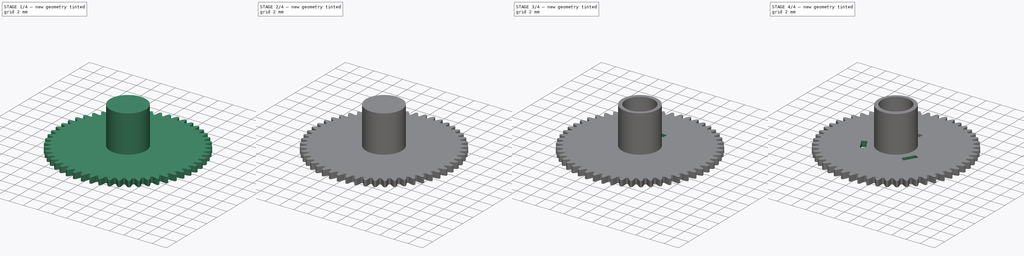
[diagram: build sequence overview — one tinted view per stage of 4, left to right]
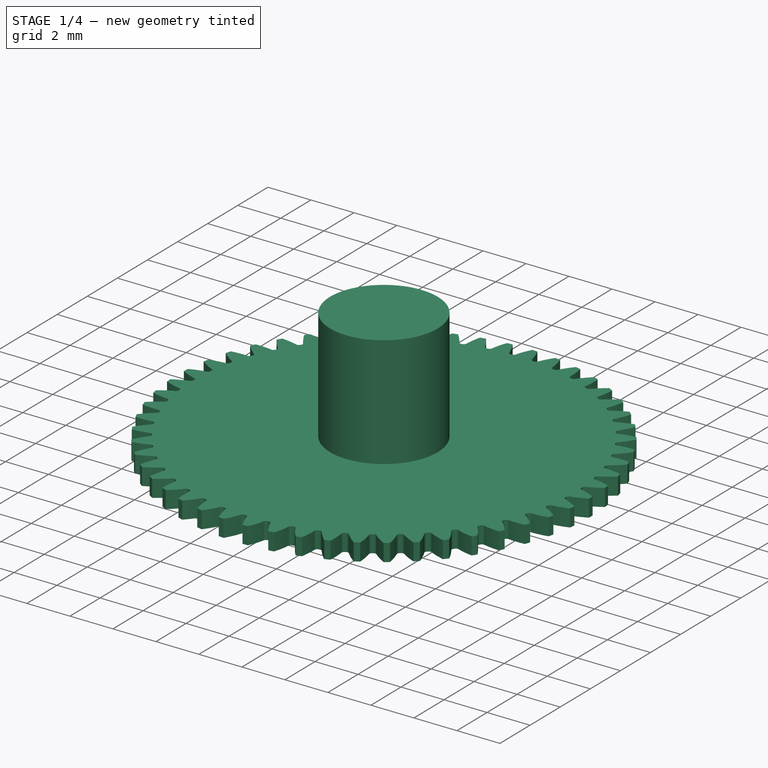
[diagram: stage 1 of 4 — iso view after this stage's code; geometry added in this stage tinted green]
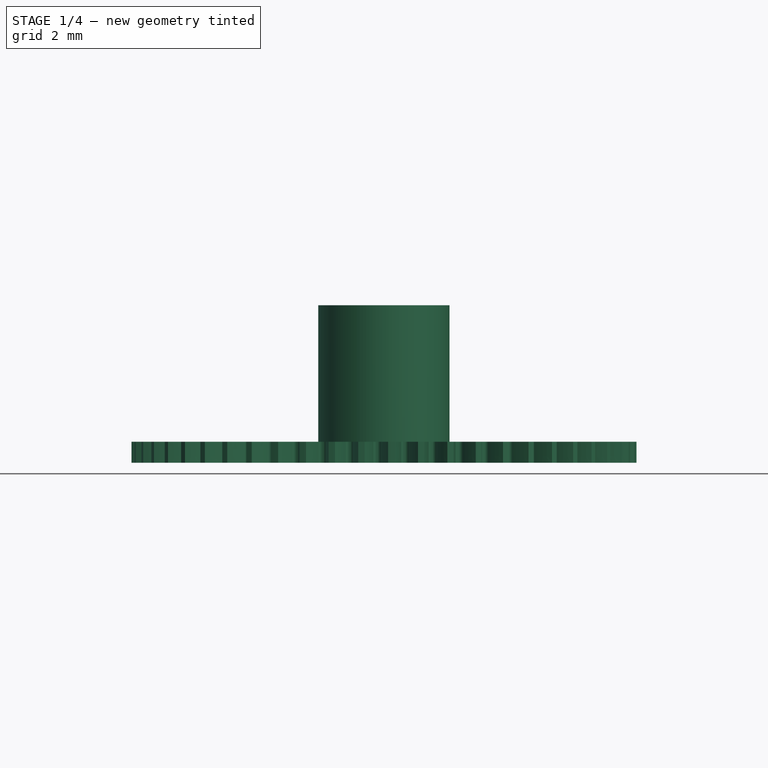
[diagram: stage 1 of 4 — front view after this stage's code; geometry added in this stage tinted green]
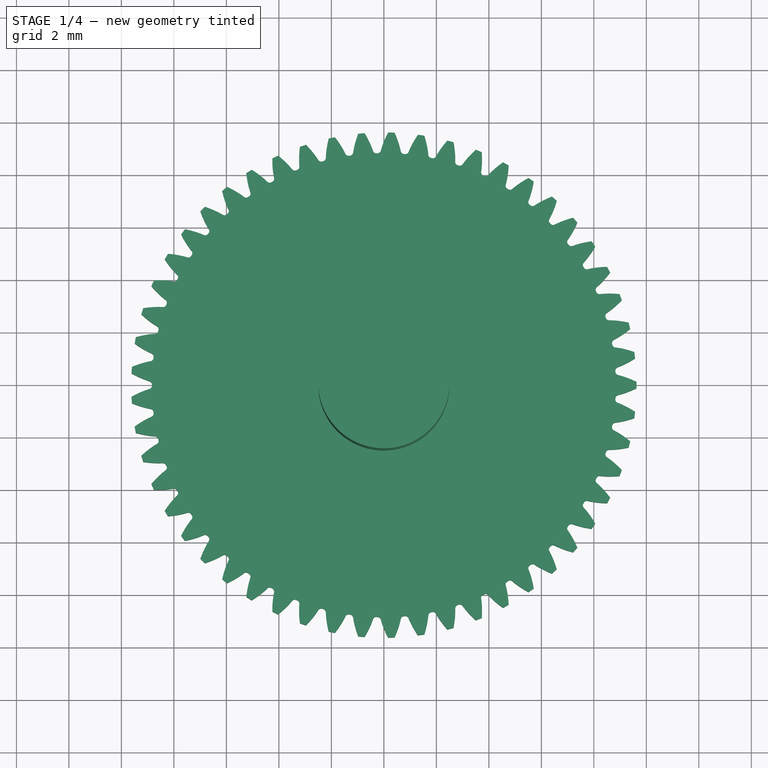
[diagram: stage 1 of 4 — top view after this stage's code; geometry added in this stage tinted green]
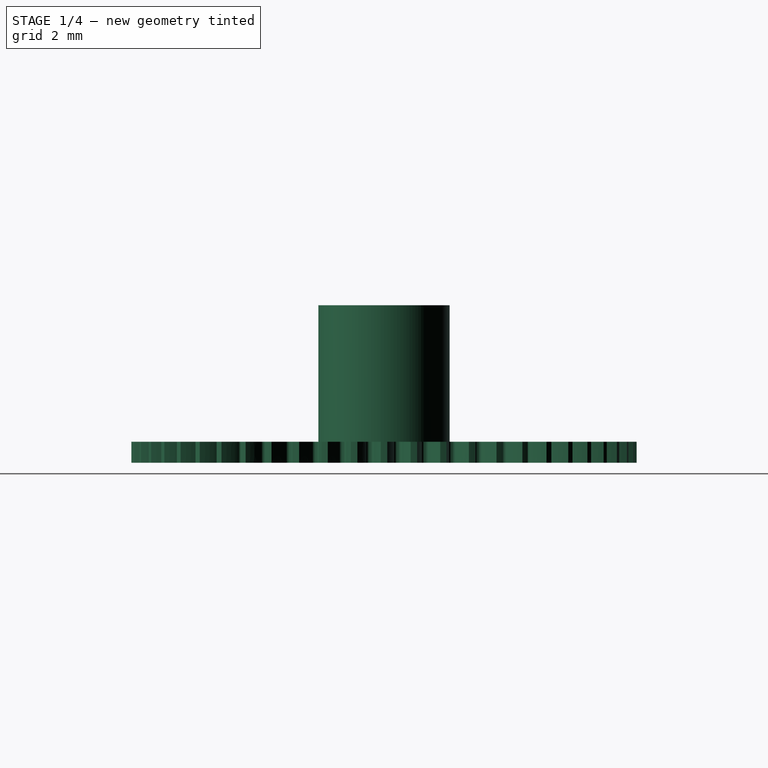
[diagram: stage 1 of 4 — right view after this stage's code; geometry added in this stage tinted green]
FCSTD DOCUMENT  (FreeCAD 0.18R4 (GitTag))
Label: my_gear
License: All rights reserved
LicenseURL: http://en.wikipedia.org/wiki/All_rights_reserved
objects: Part::Cylinder×2, PartDesign::Body×2, Part::Part2DObjectPython×1, Part::Extrusion×1, Part::Fuse×1, Part::Cut×1, PartDesign::FeatureBase×1, Sketcher::SketchObject×1, PartDesign::Pocket×1, PartDesign::PolarPattern×1, PartDesign::Fillet×1
note: 14 computed .brp shape members not serialized (recipe doc carries the construction recipe); baked Part::Feature solids carry a one-line shape summary decoded from their .brp

FEATURE [Part::Part2DObjectPython] InvoluteGear  # Draft 2D object (typed FeaturePython)
  ExternalGear = true
  HighPrecision = true
  Modules = 0.35
  NumberOfTeeth = 53
  PressureAngle = 22
FEATURE [Part::Cylinder] Cylinder  label="Цилиндр"
  Angle = 360
  AttacherType = Attacher::AttachEngine3D
  Height = 6
  Radius = 2.5
FEATURE [Part::Extrusion] Extrude
  Base = -> InvoluteGear
  Dir = (0,0,1)
  DirMode = 2
  FaceMakerClass = Part::FaceMakerBullseye
  LengthFwd = 0.8
  LengthRev = 0
  Solid = true
  Symmetric = false
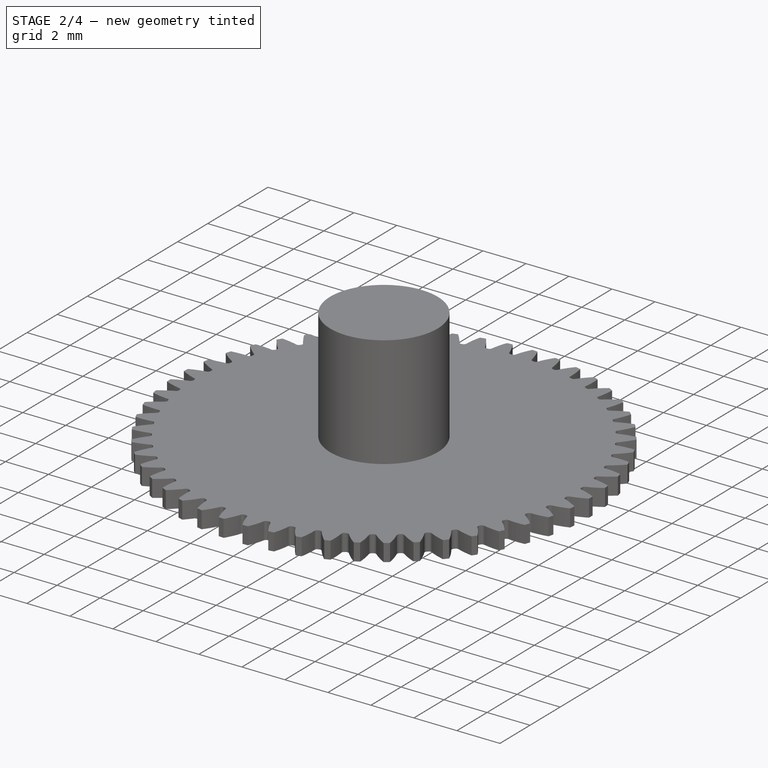
[diagram: stage 2 of 4 — iso view after this stage's code; geometry added in this stage tinted green]
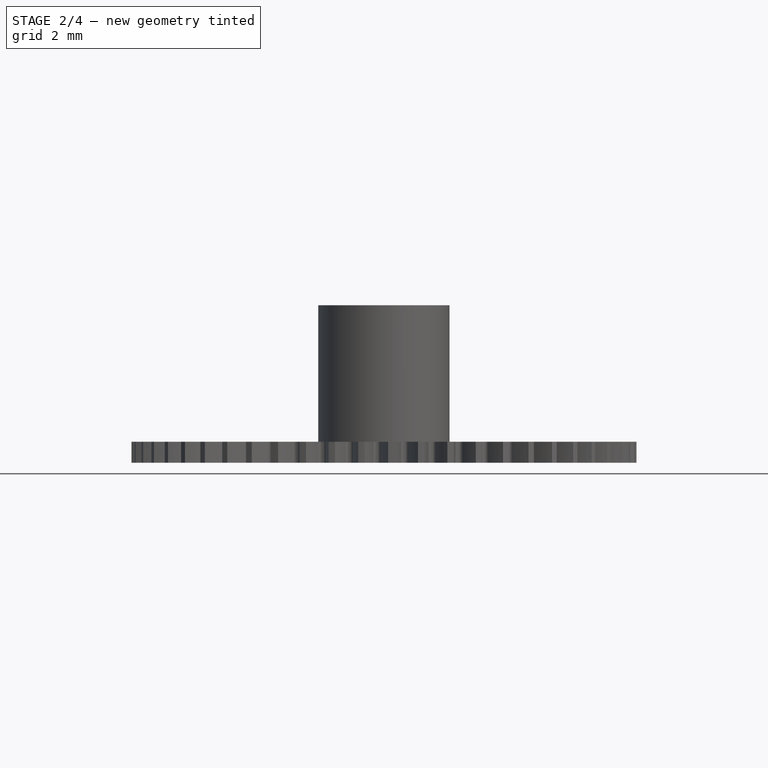
[diagram: stage 2 of 4 — front view after this stage's code; geometry added in this stage tinted green]
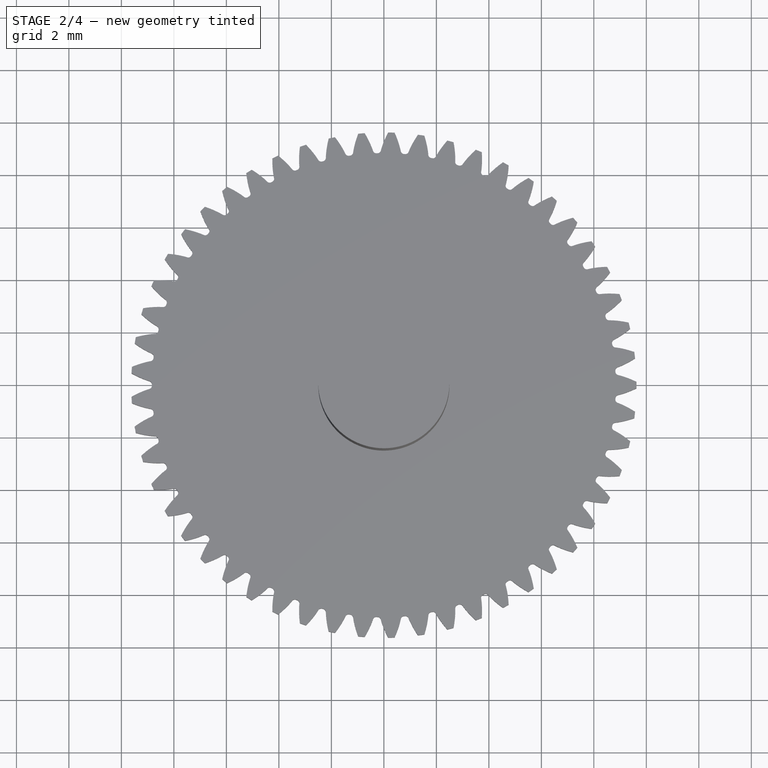
[diagram: stage 2 of 4 — top view after this stage's code; geometry added in this stage tinted green]
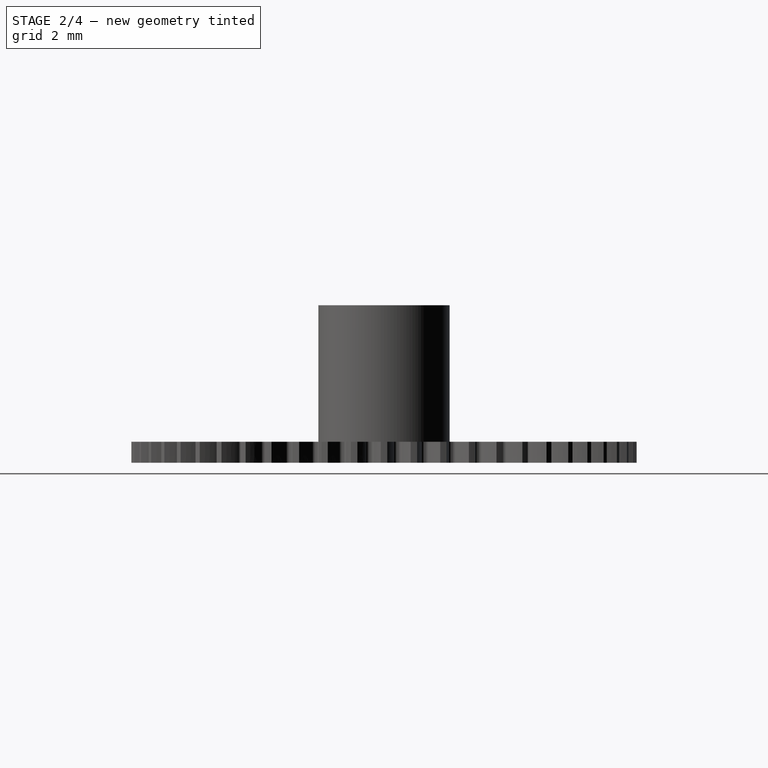
[diagram: stage 2 of 4 — right view after this stage's code; geometry added in this stage tinted green]
FEATURE [Part::Cylinder] Cylinder001  label="Цилиндр001"
  Angle = 360
  AttacherType = Attacher::AttachEngine3D
  Height = 6
  Radius = 2
FEATURE [Part::Fuse] Fusion
  Base = -> Extrude
  Tool = -> Cylinder
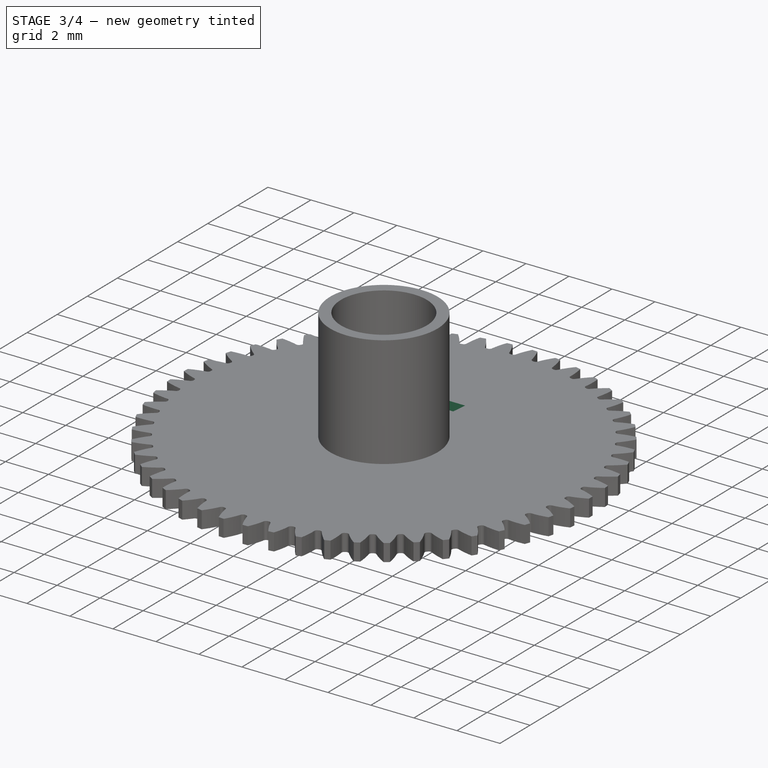
[diagram: stage 3 of 4 — iso view after this stage's code; geometry added in this stage tinted green]
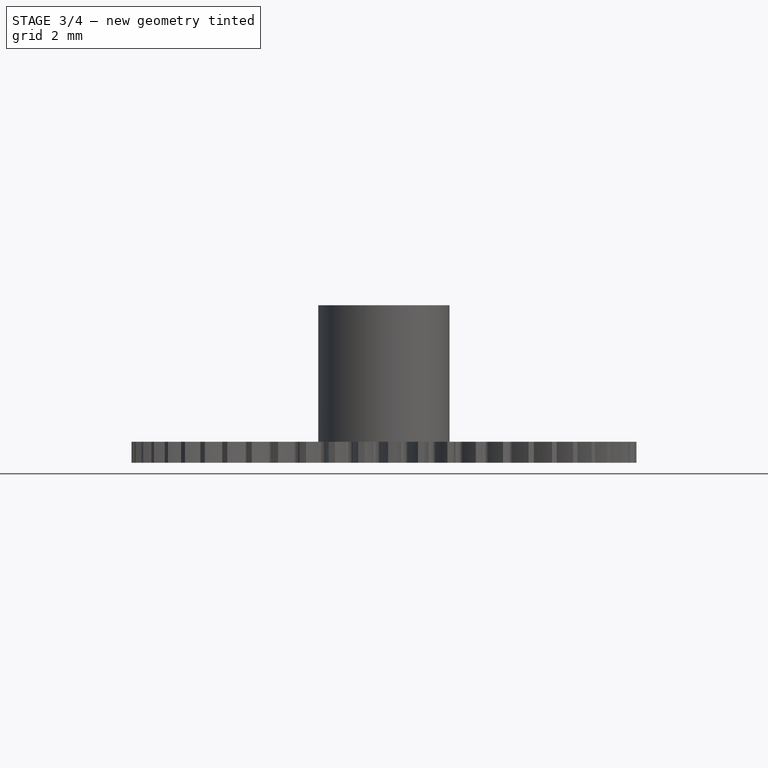
[diagram: stage 3 of 4 — front view after this stage's code; geometry added in this stage tinted green]
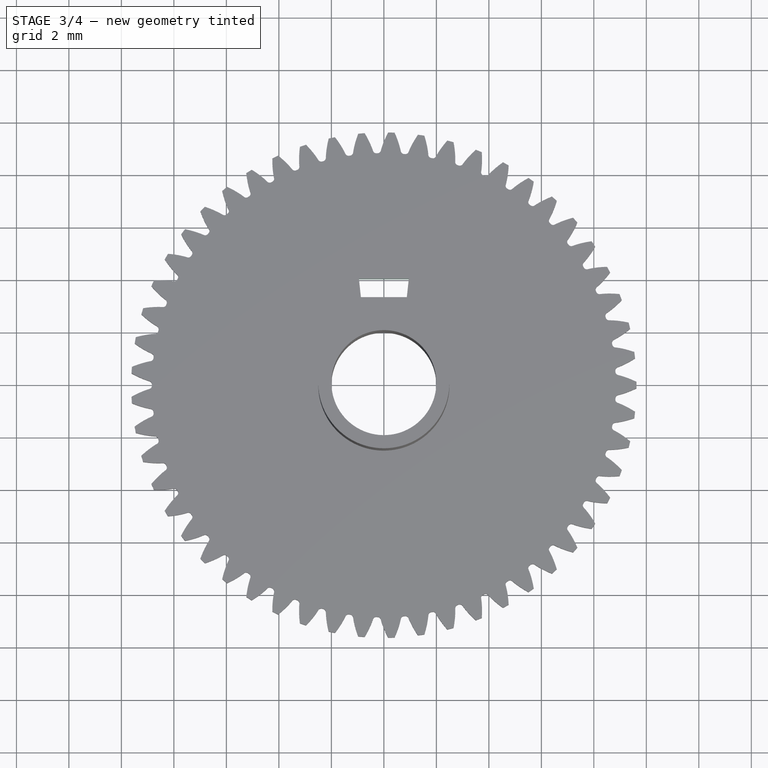
[diagram: stage 3 of 4 — top view after this stage's code; geometry added in this stage tinted green]
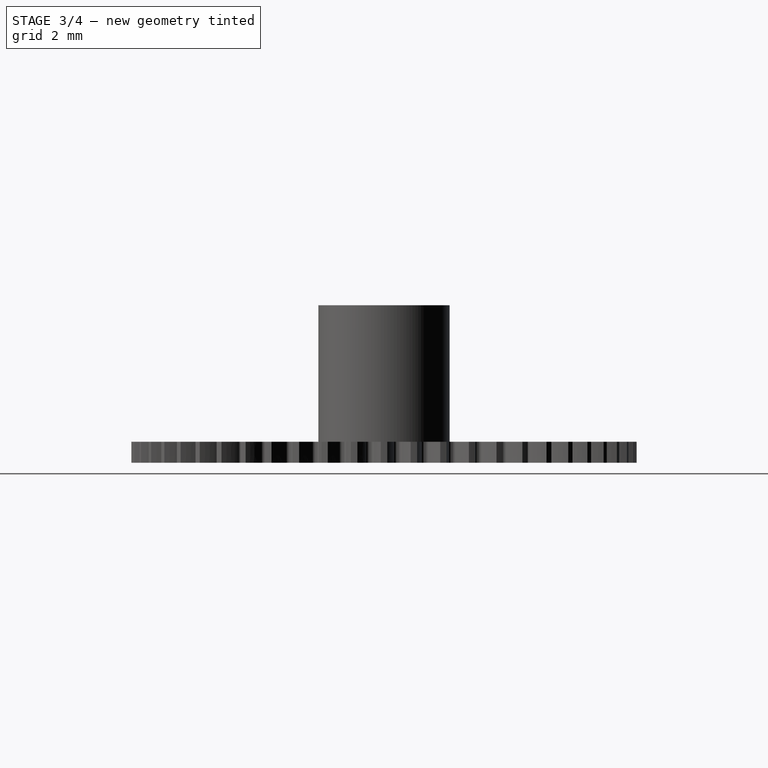
[diagram: stage 3 of 4 — right view after this stage's code; geometry added in this stage tinted green]
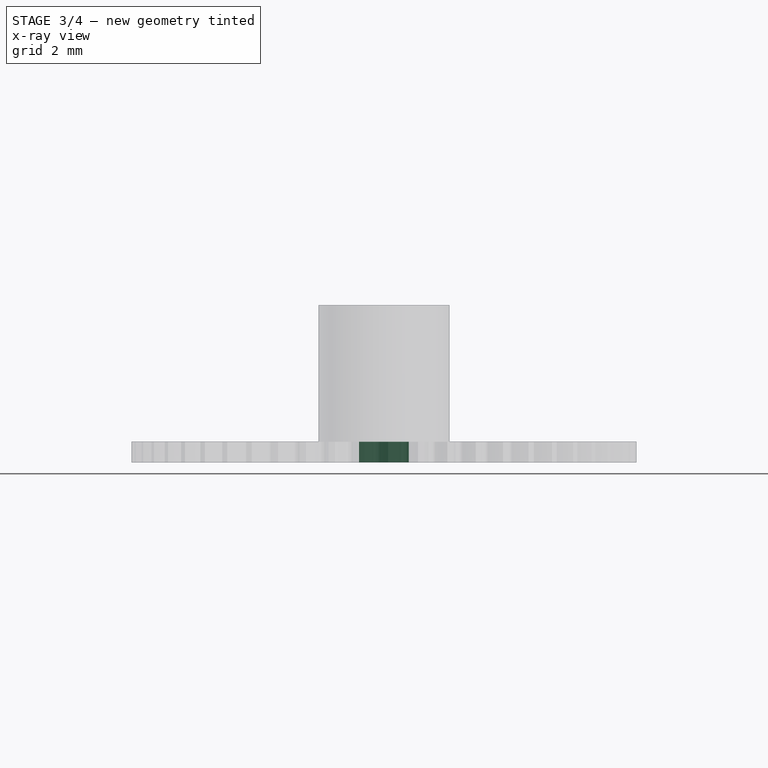
[diagram: stage 3 of 4 — x-ray composite at the front view; earlier geometry ghosted, this stage's added geometry solid]
FEATURE [Part::Cut] Cut
  Base = -> Fusion
  Placement = pos=(0,0,0) rot=(1,0,0;3.14159rad)
  Tool = -> Cylinder001
FEATURE [PartDesign::Body] Body
  Origin = -> Origin
FEATURE [PartDesign::FeatureBase] BaseFeature
  BaseFeature = -> Cut
FEATURE [Sketcher::SketchObject] Sketch
  MapMode = 5
  Placement = pos=(0,0,0.8) rot=(0,0,1;0rad)
  Support = -> [BaseFeature]
  sketch-geometry (4):
    g0: LineSegment StartX=-0.95 StartY=4.04543 StartZ=0 EndX=0.95 EndY=4.04543 EndZ=0
    g1: LineSegment StartX=0.95 StartY=4.04543 StartZ=0 EndX=0.875 EndY=3.34946 EndZ=0
    g2: LineSegment StartX=0.875 StartY=3.34946 StartZ=0 EndX=-0.875 EndY=3.34946 EndZ=0
    g3: LineSegment StartX=-0.875 StartY=3.34946 StartZ=0 EndX=-0.95 EndY=4.04543 EndZ=0
  constraints (9):
    c: Coincident(g0,g1)
    c: Coincident(g1,g2)
    c: Coincident(g2,g3)
    c: Coincident(g3,g0)
    c: DistanceX(g0,g0) = 1.9
    c: Symmetric(g0,g0,g-2)
    c: Symmetric(g1,g2,g-2)
    c: DistanceX(g2,g2) = 1.75
    c: Distance(g1) = 0.7
FEATURE [PartDesign::Pocket] Pocket
  BaseFeature = -> BaseFeature
  Length = 5
  Length2 = 100
  Profile = -> Sketch
  Type = 0
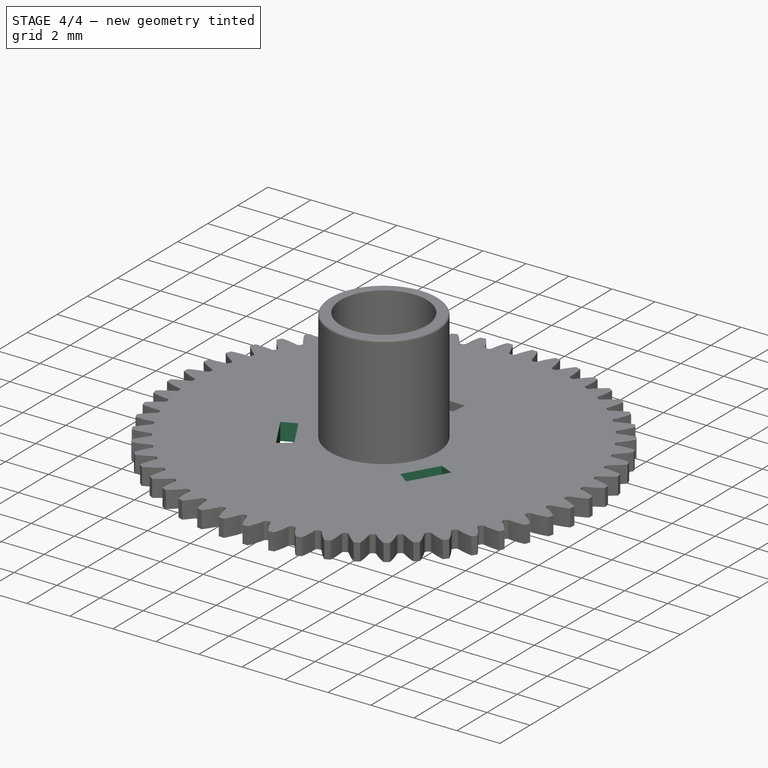
[diagram: stage 4 of 4 — iso view after this stage's code; geometry added in this stage tinted green]
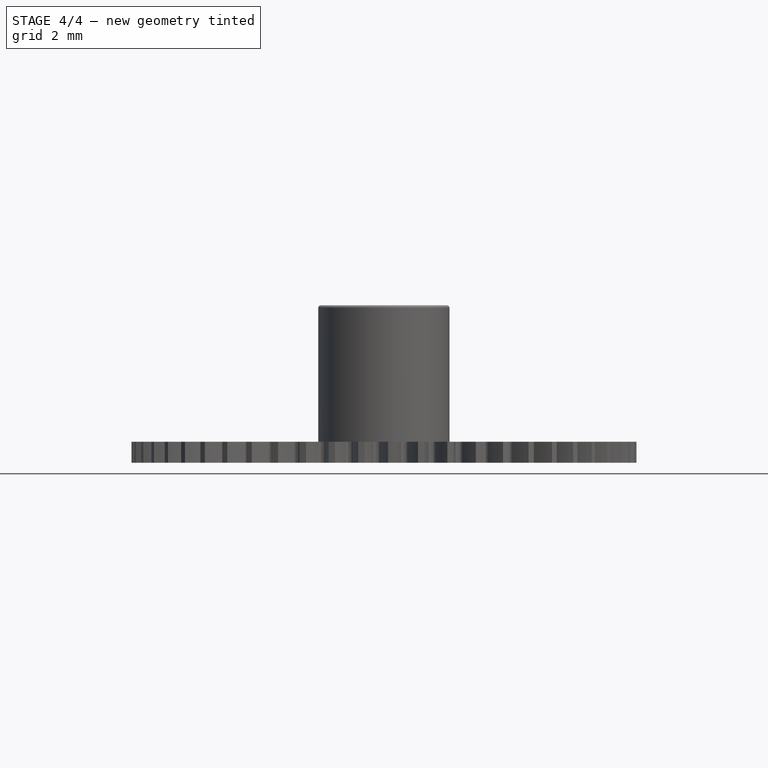
[diagram: stage 4 of 4 — front view after this stage's code; geometry added in this stage tinted green]
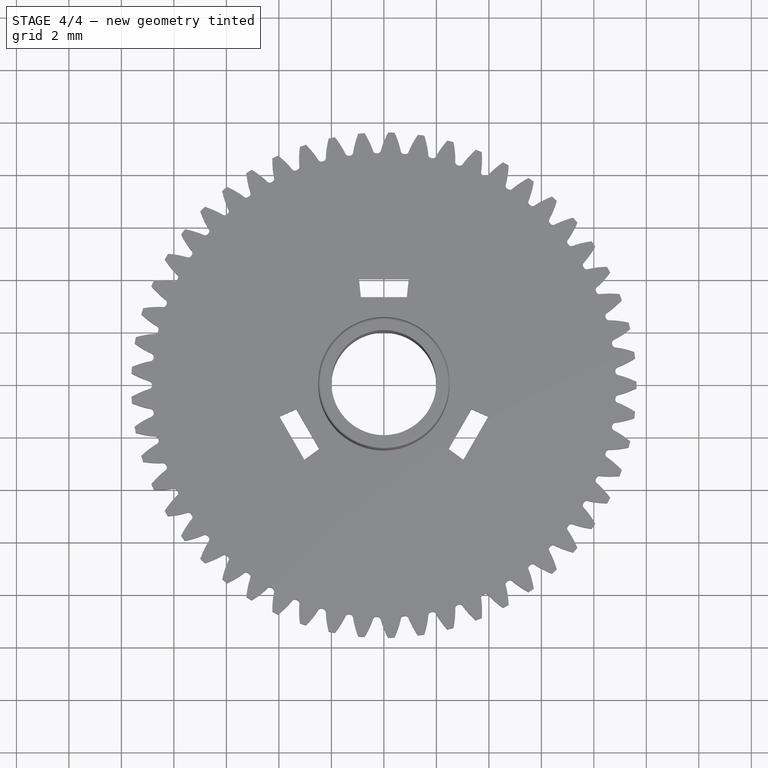
[diagram: stage 4 of 4 — top view after this stage's code; geometry added in this stage tinted green]
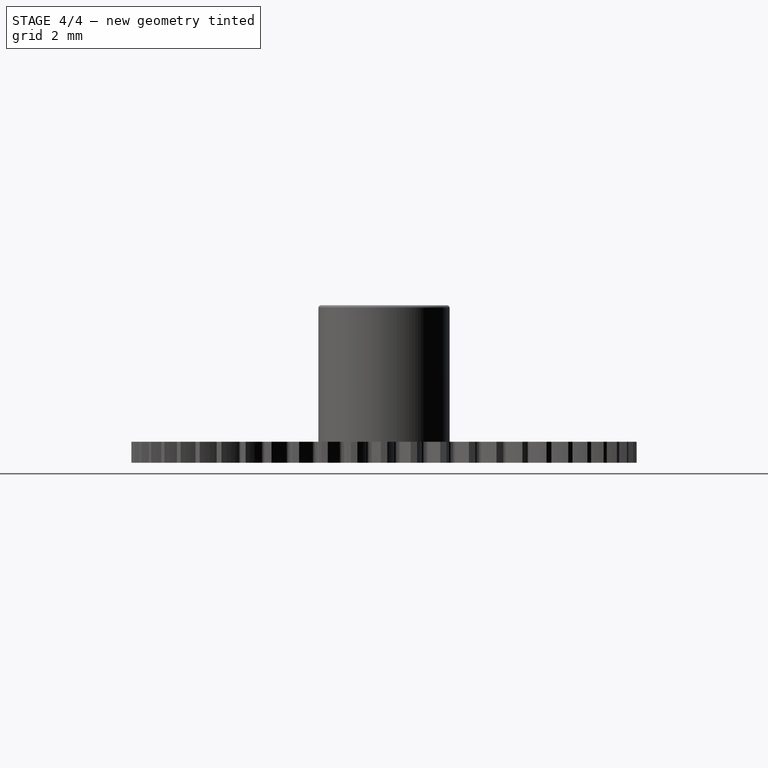
[diagram: stage 4 of 4 — right view after this stage's code; geometry added in this stage tinted green]
FEATURE [PartDesign::PolarPattern] PolarPattern
  Angle = 360
  Axis = -> Sketch [N_Axis]
  BaseFeature = -> Pocket
  Occurrences = 3
  Originals = -> [Pocket]
FEATURE [PartDesign::Fillet] Fillet
  Base = -> PolarPattern [Edge1313]
  BaseFeature = -> PolarPattern
  Radius = 0.1
FEATURE [PartDesign::Body] Body001
  BaseFeature = -> Cut
  Group = -> [BaseFeature,Sketch,Pocket,PolarPattern,Fillet]
  Origin = -> Origin001
  Tip = -> Fillet
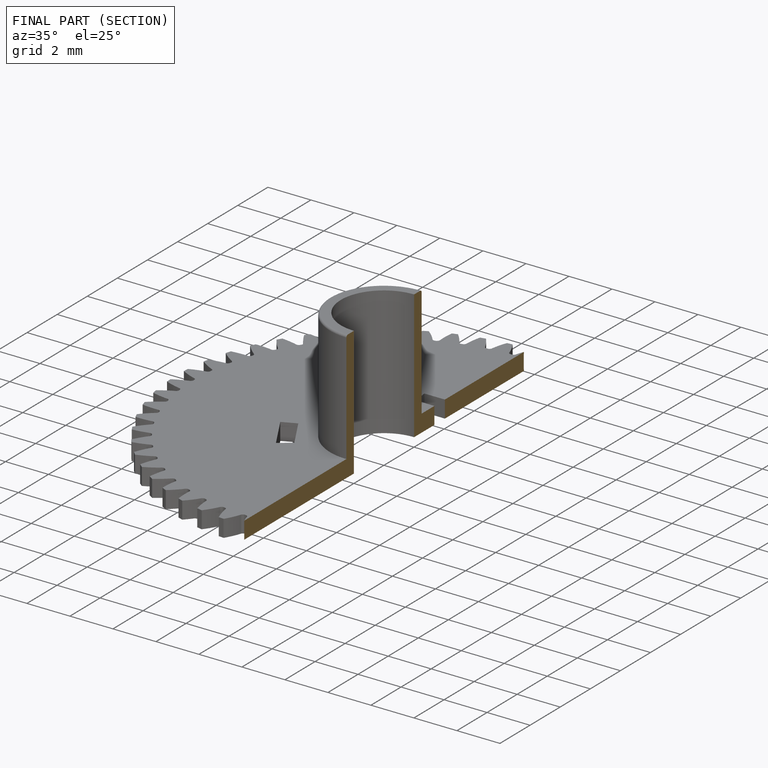
[diagram: finished part — half-section view (interior)]
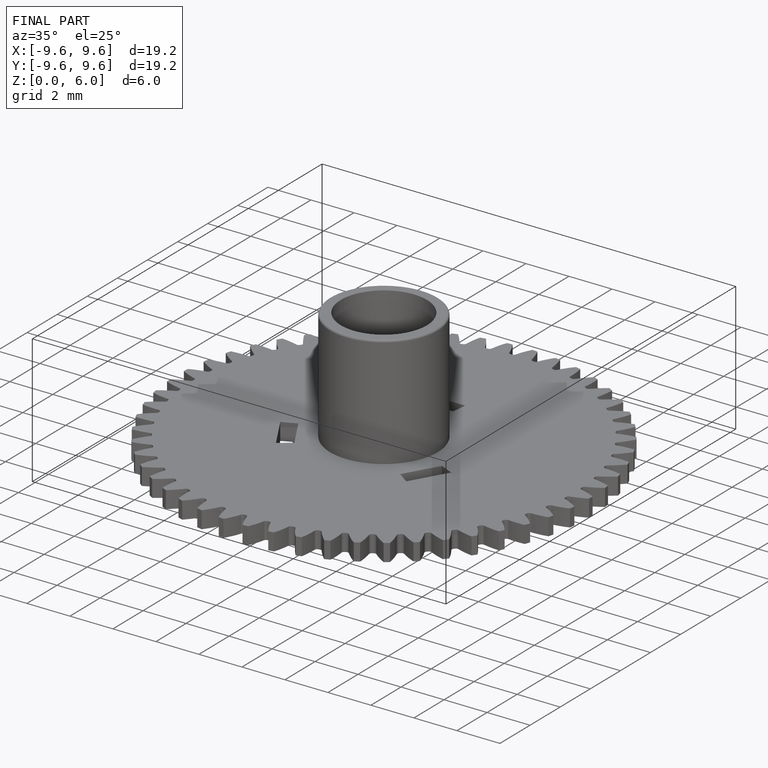
[diagram: finished part — iso view with bounding-box wireframe]
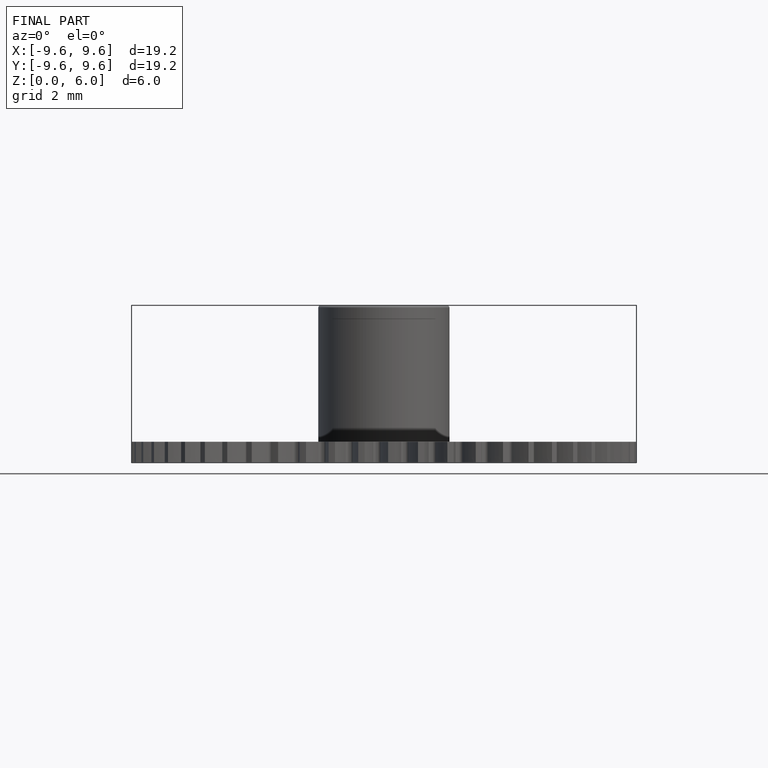
[diagram: finished part — front view with bounding-box wireframe]
